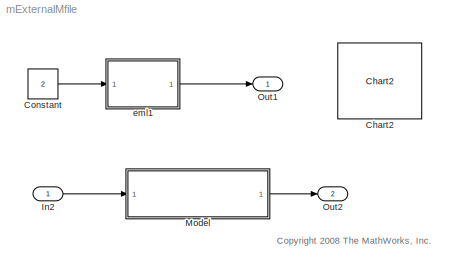
MODEL mExternalMfile
KIND model
BLOCK [Reference] Chart2  REF=mExternalMlib/Chart2
  Ports = []
  SID = 2
  SourceBlock = mExternalMlib/Chart2
  SourceType = SubSystem
BLOCK [Constant] Constant
  SID = 3
  Value = 2
BLOCK [Inport] In2
  IconDisplay = Port number
  OutDataTypeStr = double
  SID = 1
BLOCK [ModelReference] Model
  ModelNameDialog = mExternalMfileRef
  ModelReferenceVersion = 1.15
  Ports = [1, 1]
  SID = 4
  Variant = off
BLOCK [Outport] Out1
  IconDisplay = Port number
  SID = 6
BLOCK [Outport] Out2
  IconDisplay = Port number
  Port = 2
  SID = 7
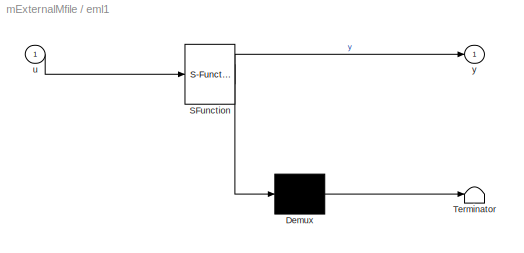
BLOCK [SubSystem] eml1
  ErrorFcn = Stateflow.Translate.translate
  PermitHierarchicalResolution = ExplicitOnly
  Ports = [1, 1]
  RequestExecContextInheritance = off
  SFBlockType = MATLAB Function
  SID = 5
  TreatAsAtomicUnit = on
  Variant = off
BLOCK [Demux] eml1/ Demux 
  Outputs = 1
  Ports = [1, 1]
  SID = 5::7
BLOCK [S-Function] eml1/ SFunction 
  EnableBusSupport = on
  FunctionName = sf_sfun
  PortCounts = [1 2]
  Ports = [1, 2]
  SFcnIsStateOwnerBlock = off
  SFunctionDeploymentMode = off
  SID = 5::6
  Tag = Stateflow S-Function mExternalMfile 2
BLOCK [Terminator] eml1/ Terminator 
  SID = 5::8
BLOCK [Inport] eml1/u
  IconDisplay = Port number
  SID = 5::1
BLOCK [Outport] eml1/y
  IconDisplay = Port number
  SID = 5::5
ANNOTATION (root): <copyright redacted>
LINE Constant:1 -> eml1:1
LINE In2:1 -> Model:1
LINE Model:1 -> Out2:1
LINE eml1/ Demux :1 -> eml1/ Terminator :1
LINE eml1/ SFunction :1 -> eml1/ Demux :1
LINE eml1/ SFunction :2 -> eml1/y:1
LINE eml1/u:1 -> eml1/ SFunction :1
LINE eml1:1 -> Out1:1
CHART eml1 states=1 transitions=1
  STATE_LABEL 'eML_blk_kernel()'
